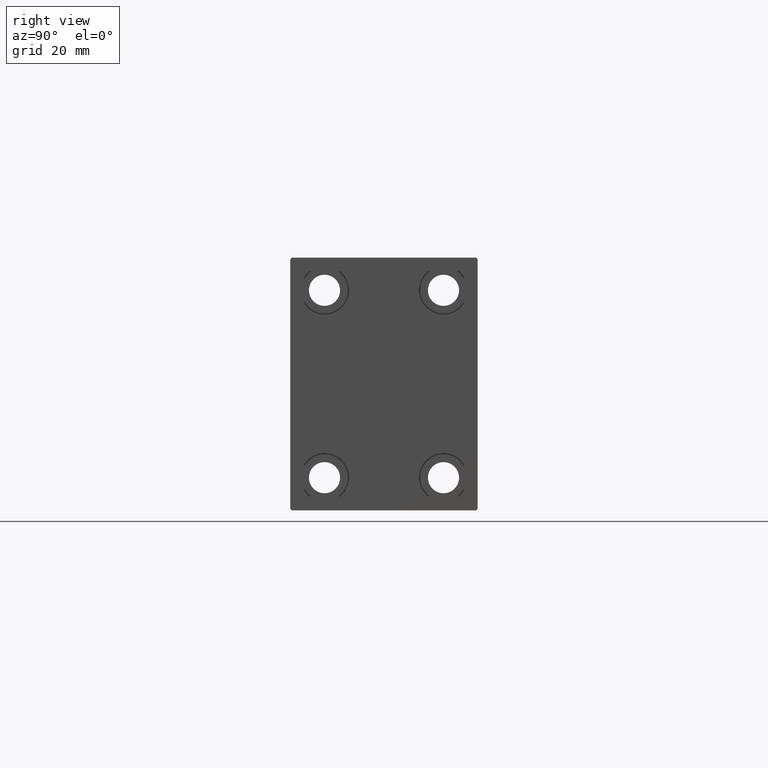
[diagram: clean part render]
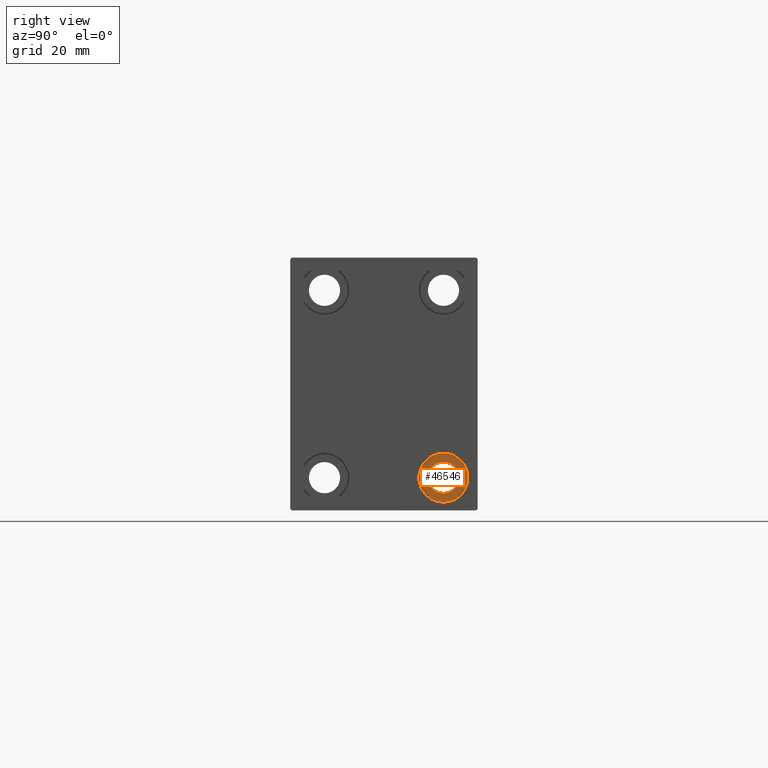
[diagram: same view with one face highlighted and labeled with its STEP entity id]
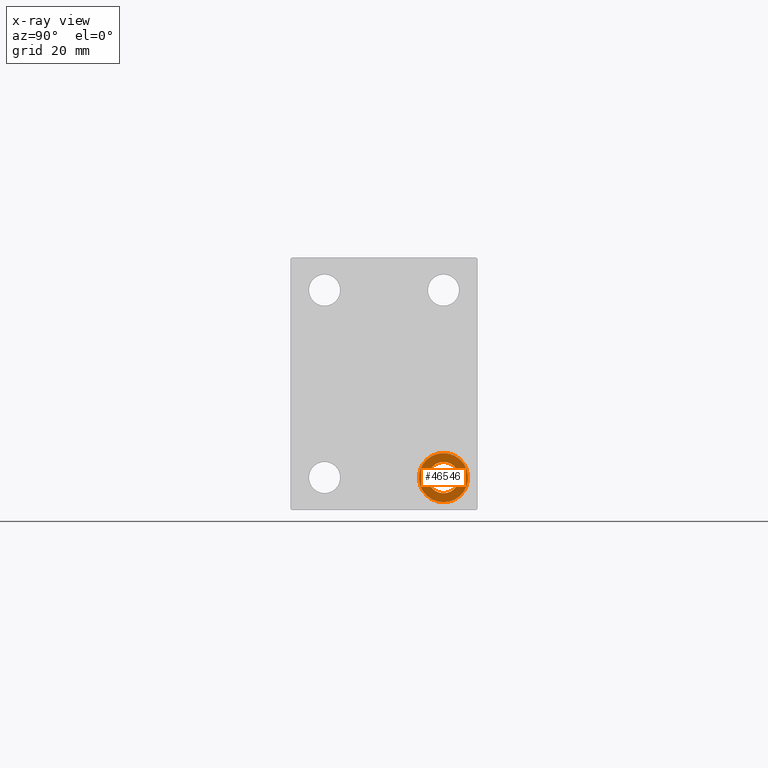
[diagram: x-ray of the same camera — body ghosted, the highlighted face saturated]
A machine part, right view. The second image highlights one B-rep face of the part: STEP entity #46546.
The next image is the same camera in x-ray: the body ghosted, the highlighted face saturated — about 0% of this face is hidden behind the body in this view.
In plain terms, the highlighted planar face has unit normal (1, 0, 0).
Its self-contained STEP definition (entity closure, byte-faithful):
#224 = EDGE_CURVE ( 'NONE', #42126, #1584, #35865, .T. ) ;
#1584 = VERTEX_POINT ( 'NONE', #15413 ) ;
#1961 = VERTEX_POINT ( 'NONE', #11556 ) ;
#4468 = DIRECTION ( 'NONE',  ( 0.000000000000000000, 0.000000000000000000, 1.000000000000000000 ) ) ;
#7736 = EDGE_CURVE ( 'NONE', #45332, #1961, #38233, .T. ) ;
#7993 = ORIENTED_EDGE ( 'NONE', *, *, #40199, .F. ) ;
#8423 = DIRECTION ( 'NONE',  ( -1.000000000000000000, -0.000000000000000000, -0.000000000000000000 ) ) ;
#11556 = CARTESIAN_POINT ( 'NONE',  ( 131.9999999999999716, 19.99999999999999645, -39.74999999999999289 ) ) ;
#12208 = CARTESIAN_POINT ( 'NONE',  ( 131.9999999999999716, 19.99999999999999645, -31.49999999999999289 ) ) ;
#13098 = PLANE ( 'NONE',  #22353 ) ;
#14499 = DIRECTION ( 'NONE',  ( 1.000000000000000000, 0.000000000000000000, -0.000000000000000000 ) ) ;
#14580 = EDGE_LOOP ( 'NONE', ( #36346, #31848 ) ) ;
#15413 = CARTESIAN_POINT ( 'NONE',  ( 131.9999999999999716, 19.99999999999999645, -26.24999999999999289 ) ) ;
#16310 = AXIS2_PLACEMENT_3D ( 'NONE', #30491, #23623, #44925 ) ;
#16868 = CIRCLE ( 'NONE', #43312, 5.249999999999997335 ) ;
#18951 = DIRECTION ( 'NONE',  ( -1.000000000000000000, -0.000000000000000000, -0.000000000000000000 ) ) ;
#19121 = EDGE_LOOP ( 'NONE', ( #7993, #34141 ) ) ;
#22353 = AXIS2_PLACEMENT_3D ( 'NONE', #27547, #14499, #4468 ) ;
#23208 = CARTESIAN_POINT ( 'NONE',  ( 131.9999999999999716, 19.99999999999999645, -31.49999999999999289 ) ) ;
#23623 = DIRECTION ( 'NONE',  ( -1.000000000000000000, -0.000000000000000000, -0.000000000000000000 ) ) ;
#23996 = CARTESIAN_POINT ( 'NONE',  ( 131.9999999999999716, 19.99999999999999645, -31.49999999999999289 ) ) ;
#27462 = CIRCLE ( 'NONE', #43348, 8.250000000000000000 ) ;
#27547 = CARTESIAN_POINT ( 'NONE',  ( 131.9999999999999716, 19.99999999999999645, -31.49999999999999289 ) ) ;
#30491 = CARTESIAN_POINT ( 'NONE',  ( 131.9999999999999716, 19.99999999999999645, -31.49999999999999289 ) ) ;
#30628 = DIRECTION ( 'NONE',  ( 0.000000000000000000, 0.000000000000000000, -1.000000000000000000 ) ) ;
#31345 = AXIS2_PLACEMENT_3D ( 'NONE', #23996, #35102, #30628 ) ;
#31573 = FACE_OUTER_BOUND ( 'NONE', #19121, .T. ) ;
#31848 = ORIENTED_EDGE ( 'NONE', *, *, #224, .T. ) ;
#33854 = DIRECTION ( 'NONE',  ( 0.000000000000000000, 0.000000000000000000, -1.000000000000000000 ) ) ;
#34141 = ORIENTED_EDGE ( 'NONE', *, *, #7736, .F. ) ;
#34340 = CARTESIAN_POINT ( 'NONE',  ( 131.9999999999999716, 19.99999999999999645, -36.74999999999999289 ) ) ;
#35102 = DIRECTION ( 'NONE',  ( -1.000000000000000000, -0.000000000000000000, -0.000000000000000000 ) ) ;
#35865 = CIRCLE ( 'NONE', #31345, 5.249999999999997335 ) ;
#36346 = ORIENTED_EDGE ( 'NONE', *, *, #39126, .T. ) ;
#38233 = CIRCLE ( 'NONE', #16310, 8.250000000000000000 ) ;
#39126 = EDGE_CURVE ( 'NONE', #1584, #42126, #16868, .T. ) ;
#40199 = EDGE_CURVE ( 'NONE', #1961, #45332, #27462, .T. ) ;
#42126 = VERTEX_POINT ( 'NONE', #34340 ) ;
#42322 = CARTESIAN_POINT ( 'NONE',  ( 131.9999999999999716, 19.99999999999999645, -23.24999999999999289 ) ) ;
#43312 = AXIS2_PLACEMENT_3D ( 'NONE', #23208, #18951, #33854 ) ;
#43348 = AXIS2_PLACEMENT_3D ( 'NONE', #12208, #8423, #44169 ) ;
#44169 = DIRECTION ( 'NONE',  ( 0.000000000000000000, 0.000000000000000000, 1.000000000000000000 ) ) ;
#44925 = DIRECTION ( 'NONE',  ( 0.000000000000000000, 0.000000000000000000, 1.000000000000000000 ) ) ;
#45332 = VERTEX_POINT ( 'NONE', #42322 ) ;
#45536 = FACE_BOUND ( 'NONE', #14580, .T. ) ;
#46546 = ADVANCED_FACE ( 'NONE', ( #31573, #45536 ), #13098, .T. ) ;